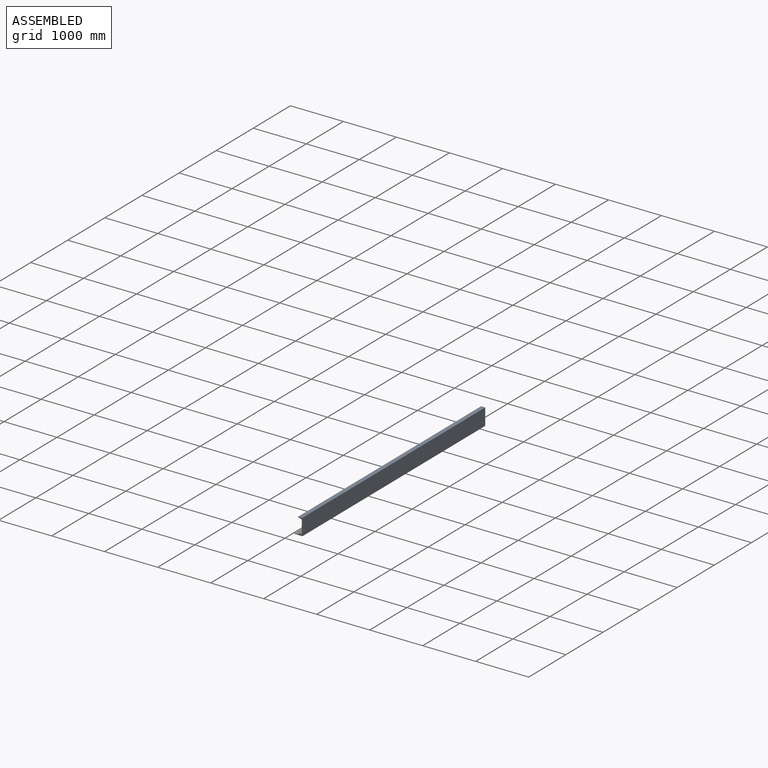
[diagram: assembled view]
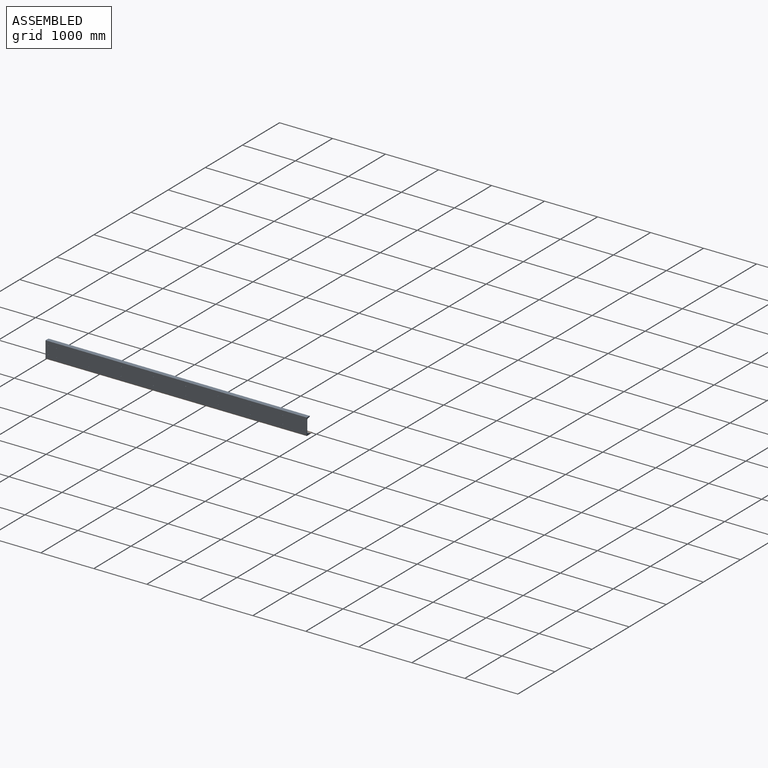
[diagram: assembled view, second angle]
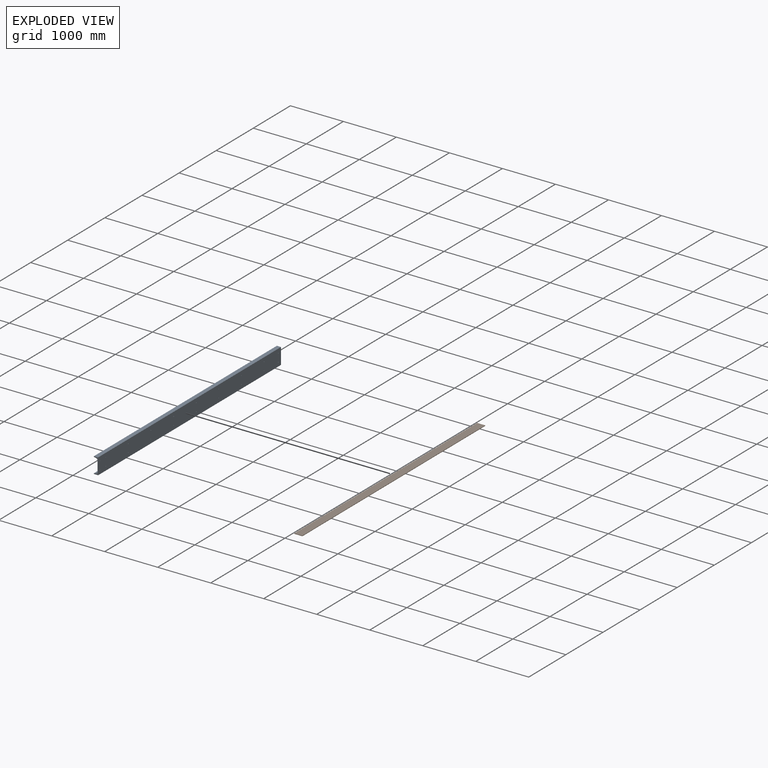
[diagram: exploded view]
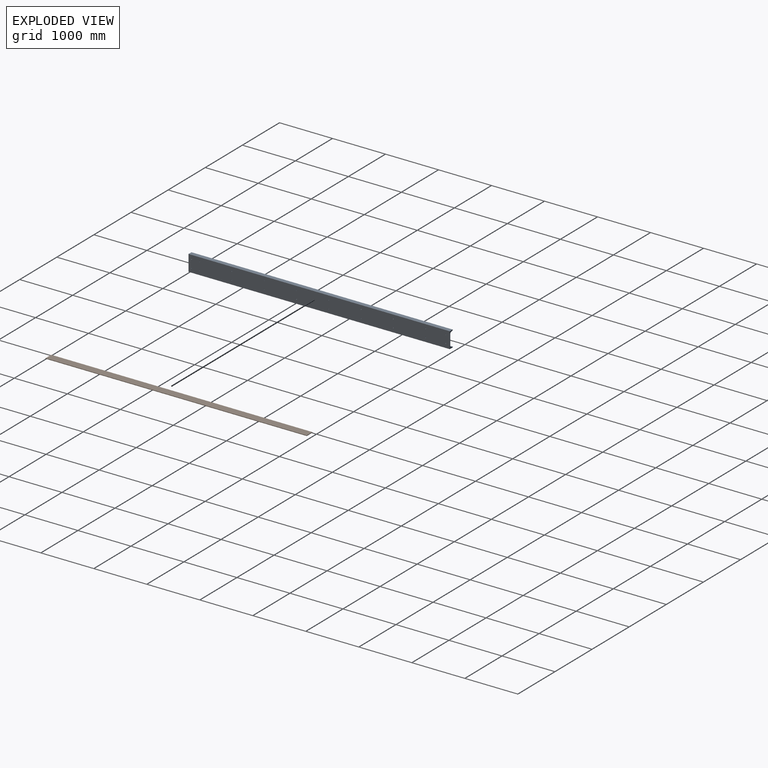
[diagram: exploded view, second angle]
ASSEMBLY  parts=2 mates=3
PART A: 36 faces, bbox 80.5x4927.6x304.8 mm
  f0: plane 4927.6x304.8mm, normal (1,0,0), area 1499398.9mm2, adj f2,f13,f14,f15,f16,f17,f18,f19
  f1: plane 4927.6x206.19mm, normal (-1,0,0), area 1013511.3mm2, adj f7,f8,f14,f15,f16,f17,f18,f19
  f2: plane 4927.6x77.34mm, normal (0,0,-1), area 381115.4mm2, adj f0,f3,f14,f15
  f3: cylinder r=3.17mm len=4927.6mm, axis (0,1,0), area 24575.3mm2, adj f2,f4,f14,f15
  f4: plane 4927.6x7.04mm, normal (-1,0,0), area 34690.5mm2, adj f3,f5,f14,f15
  f5: cylinder r=3.17mm len=4927.6mm, axis (0,1,0), area 20779.2mm2, adj f4,f6,f14,f15
  f6: plane 4927.6x45.85mm, normal (-0.24,0,0.97), area 232771.3mm2, adj f5,f7,f14,f15
  f7: cylinder r=25.4mm len=4927.6mm, axis (0,1,0), area 166233.7mm2, adj f1,f6,f14,f15
  f8: cylinder r=25.4mm len=4927.6mm, axis (0,1,0), area 166233.7mm2, adj f1,f9,f14,f15
  f9: plane 4927.6x45.85mm, normal (-0.24,0,-0.97), area 232771.3mm2, adj f8,f10,f14,f15
  f10: cylinder r=3.17mm len=4927.6mm, axis (0,1,0), area 20779.2mm2, adj f9,f11,f14,f15
  f11: plane 4927.6x7.04mm, normal (-1,0,0), area 34690.5mm2, adj f10,f12,f14,f15
  f12: cylinder r=3.17mm len=4927.6mm, axis (0,1,0), area 24575.3mm2, adj f11,f13,f14,f15
  f13: plane 4927.6x77.34mm, normal (0,0,1), area 381115.4mm2, adj f0,f12,f14,f15
  f14: plane 304.8x80.52mm, normal (0,-1,0), area 6940.7mm2, adj f0,f1,f2,f3,f4,f5,f6,f7
  f15: plane 304.8x80.52mm, normal (0,1,0), area 6940.7mm2, adj f0,f1,f2,f3,f4,f5,f6,f7
  f16: cylinder r=6.35mm len=12.95mm, axis (1,0,0), area 516.8mm2, adj f0,f1
  f17: cylinder r=6.35mm len=12.95mm, axis (1,0,0), area 516.8mm2, adj f0,f1
  f18: cylinder r=6.35mm len=12.95mm, axis (1,0,0), area 516.8mm2, adj f0,f1
  f19: cylinder r=6.35mm len=12.95mm, axis (1,0,0), area 516.8mm2, adj f0,f1
  f20: cylinder r=6.35mm len=12.95mm, axis (1,0,0), area 516.8mm2, adj f0,f1
  f21: cylinder r=6.35mm len=12.95mm, axis (1,0,0), area 516.8mm2, adj f0,f1
  f22: cylinder r=6.35mm len=12.95mm, axis (1,0,0), area 516.8mm2, adj f0,f1
  f23: cylinder r=6.35mm len=12.95mm, axis (1,0,0), area 516.8mm2, adj f0,f1
  f24: cylinder r=6.35mm len=12.95mm, axis (1,0,0), area 516.8mm2, adj f0,f1
  f25: cylinder r=6.35mm len=12.95mm, axis (1,0,0), area 516.8mm2, adj f0,f1
  f26: cylinder r=6.35mm len=12.95mm, axis (1,0,0), area 516.8mm2, adj f0,f1
  f27: cylinder r=6.35mm len=12.95mm, axis (1,0,0), area 516.8mm2, adj f0,f1
  f28: cylinder r=6.35mm len=12.95mm, axis (1,0,0), area 516.8mm2, adj f0,f1
  f29: cylinder r=6.35mm len=12.95mm, axis (1,0,0), area 516.8mm2, adj f0,f1
  f30: cylinder r=6.35mm len=12.95mm, axis (1,0,0), area 516.8mm2, adj f0,f1
  f31: cylinder r=6.35mm len=12.95mm, axis (1,0,0), area 516.8mm2, adj f0,f1
  f32: cylinder r=6.35mm len=12.95mm, axis (1,0,0), area 516.8mm2, adj f0,f1
  f33: cylinder r=6.35mm len=12.95mm, axis (1,0,0), area 516.8mm2, adj f0,f1
  f34: cylinder r=6.35mm len=12.95mm, axis (1,0,0), area 516.8mm2, adj f0,f1
  f35: cylinder r=6.35mm len=12.95mm, axis (1,0,0), area 516.8mm2, adj f0,f1
PART B: 6 faces, bbox 152.4x4927.6x9.5 mm
  f0: plane 4927.6x9.53mm, normal (-1,0,0), area 46935.4mm2, adj f1,f3,f4,f5
  f1: plane 4927.6x152.4mm, normal (0,0,-1), area 750966.2mm2, adj f0,f2,f4,f5
  f2: plane 4927.6x9.53mm, normal (1,0,0), area 46935.4mm2, adj f1,f3,f4,f5
  f3: plane 4927.6x152.4mm, normal (0,0,1), area 750966.2mm2, adj f0,f2,f4,f5
  f4: plane 152.4x9.53mm, normal (0,-1,0), area 1451.6mm2, adj f0,f1,f2,f3
  f5: plane 152.4x9.53mm, normal (0,1,0), area 1451.6mm2, adj f0,f1,f2,f3
PLACE A t=(-675.93,5008.2,-893.53)mm
PLACE B t=(-879.13,5008.2,-1055.45)mm
MATE planar B.f4 <-> A.f14  axis (0,-1,0) through (-802.93,80.6,-1050.69)mm
MATE planar A.f0 <-> B.f2  axis (1,0,0) through (-726.73,2544.57,-893.53)mm
MATE planar B.f3 <-> A.f2  axis (0,0,1) through (-802.93,80.6,-1045.93)mm
